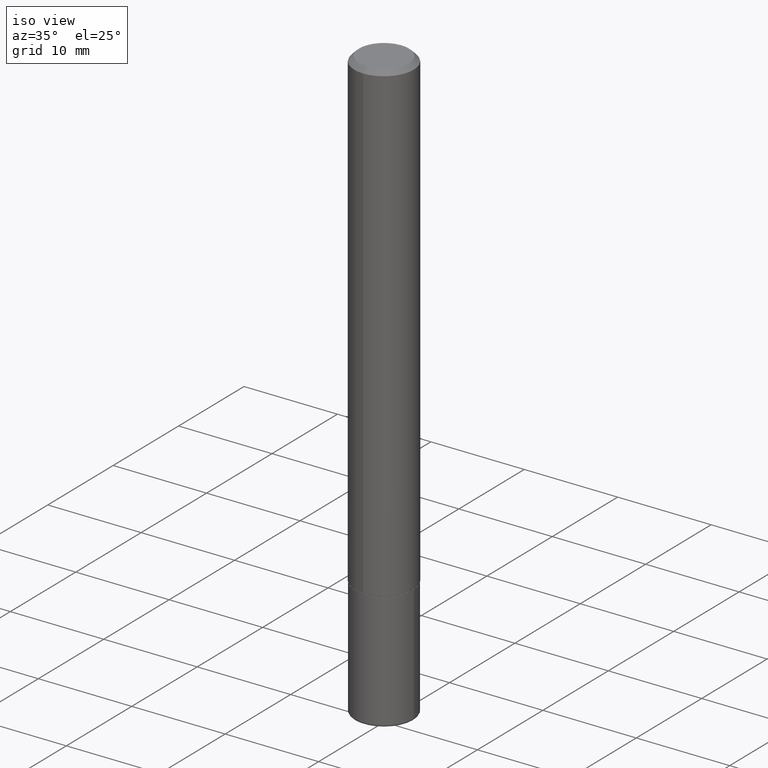
[diagram: clean part render]
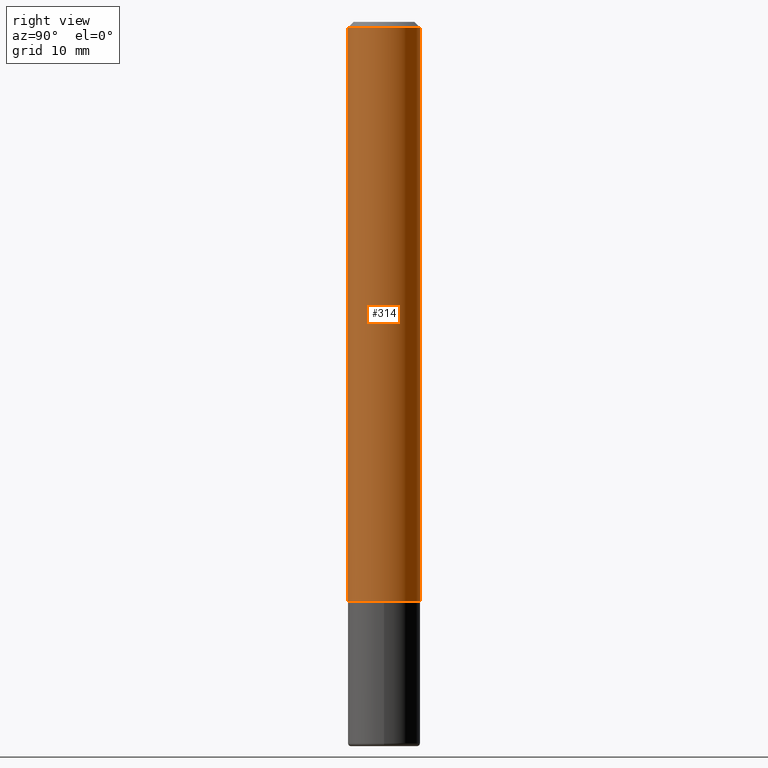
[diagram: tour spotlight — one face highlighted and labeled with its STEP entity id]
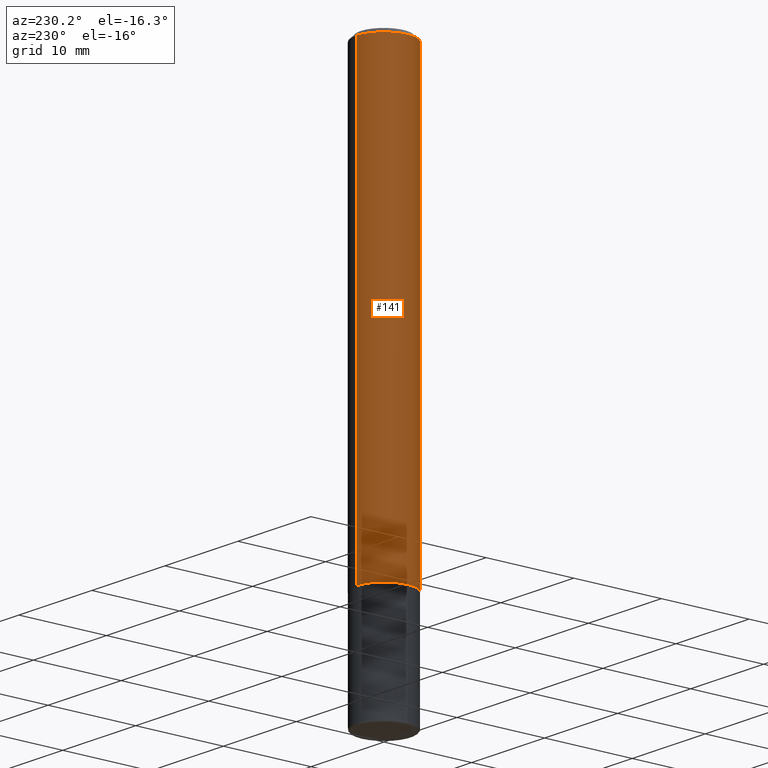
[diagram: tour spotlight — one face highlighted and labeled with its STEP entity id]
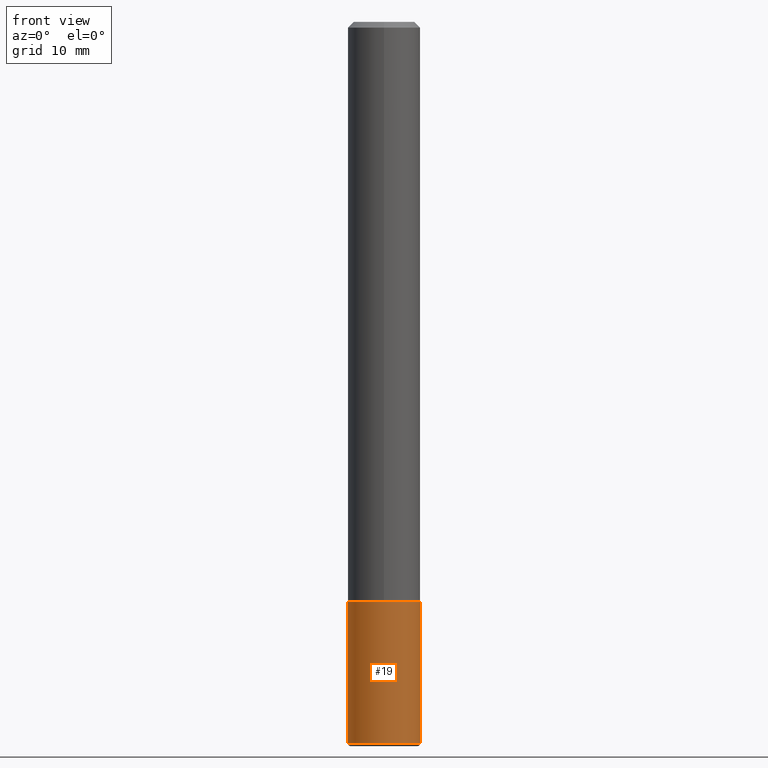
[diagram: tour spotlight — one face highlighted and labeled with its STEP entity id]
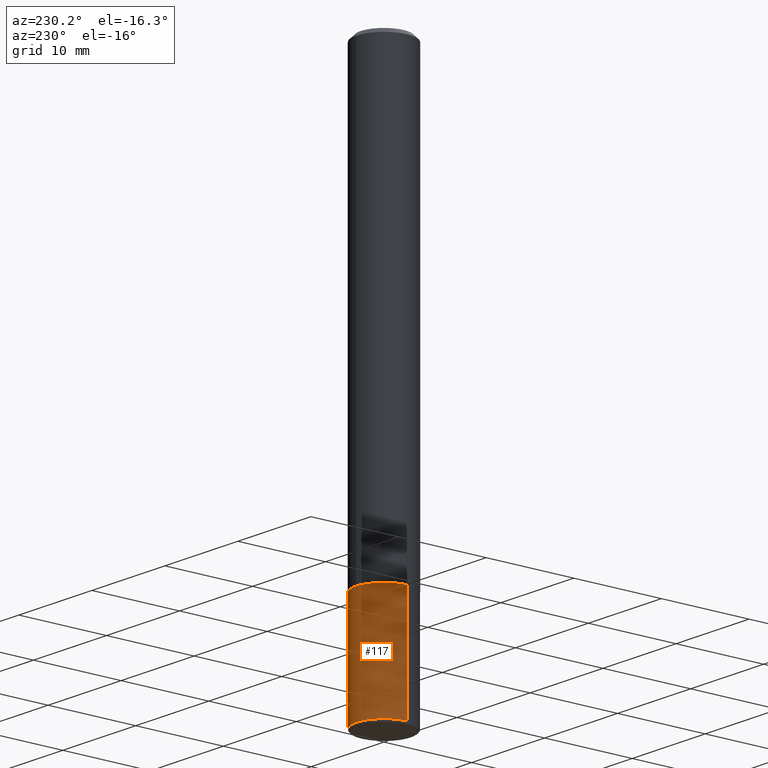
[diagram: tour spotlight — one face highlighted and labeled with its STEP entity id]
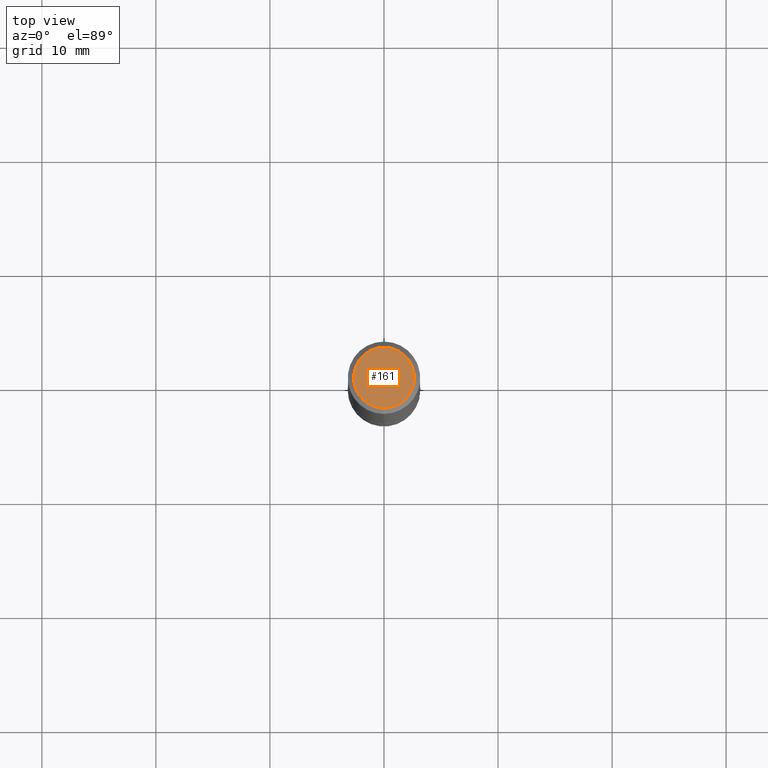
[diagram: tour spotlight — one face highlighted and labeled with its STEP entity id]
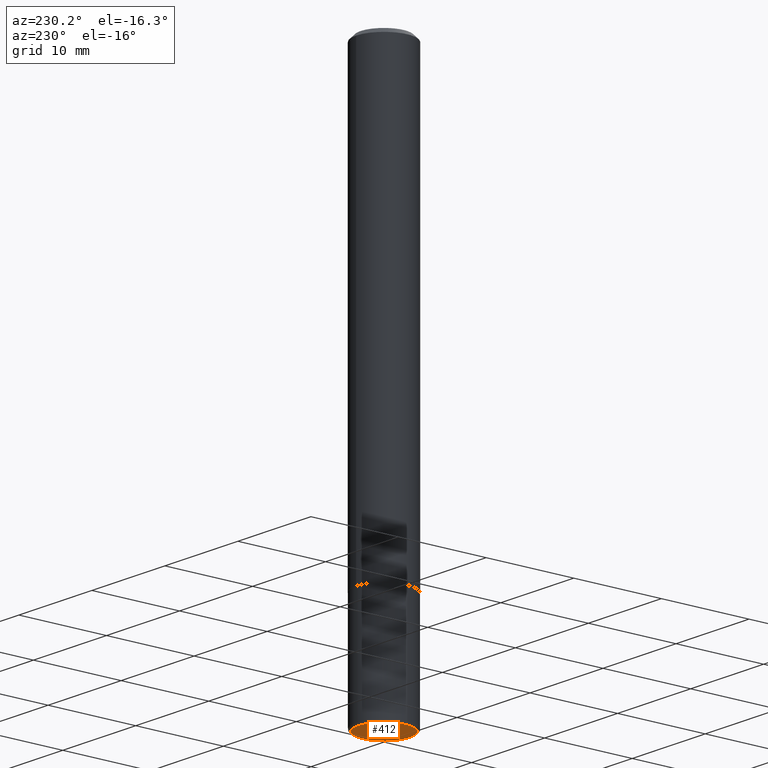
[diagram: tour spotlight — one face highlighted and labeled with its STEP entity id]
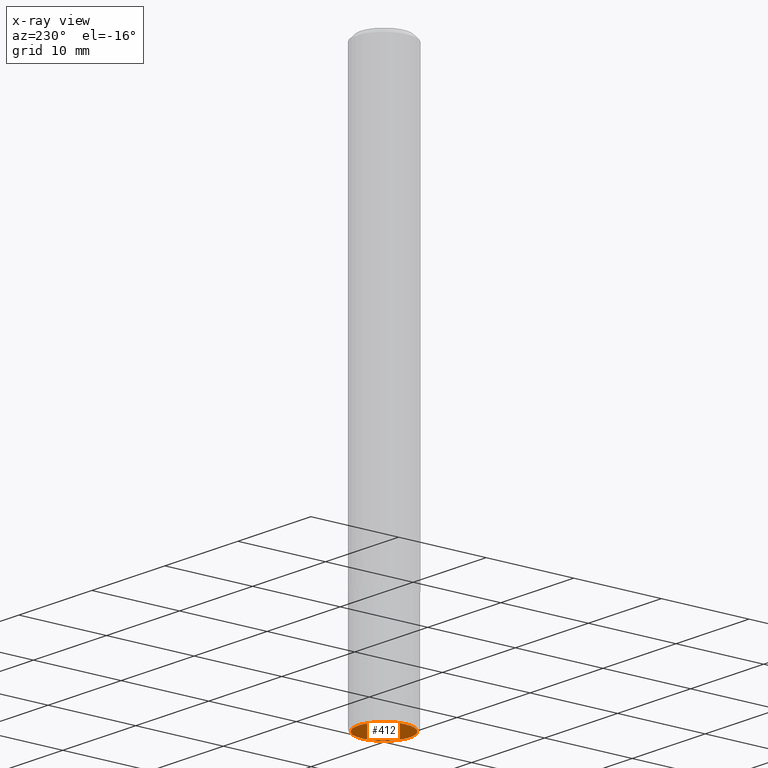
[diagram: x-ray of the same camera — body ghosted, this tour face saturated]
A machine part: a face-by-face anatomy tour. The part has 14 B-rep faces; the first image is the clean iso view, then the 6 largest visible faces are spotlighted one at a time (largest first), each with its STEP entity span.

Face 1 — right view, entity #314. In plain terms, the highlighted cylindrical surface (edge-blend (fillet) strip) has radius 3.175 mm, axis along (-0, 0, 1).
Definition (entity closure, byte-faithful):
#12 = DIRECTION ( 'NONE',  ( -2.445362441100968354E-29, 3.491633659697599275E-15, 1.000000000000000000 ) ) ;
#20 = CARTESIAN_POINT ( 'NONE',  ( -8.575622497214408537E-16, -0.1250000000000000555, -0.01999999999999959102 ) ) ;
#32 = EDGE_CURVE ( 'NONE', #33, #362, #373, .T. ) ;
#33 = VERTEX_POINT ( 'NONE', #407 ) ;
#39 = CARTESIAN_POINT ( 'NONE',  ( 0.000000000000000000, 0.000000000000000000, 0.000000000000000000 ) ) ;
#40 = ORIENTED_EDGE ( 'NONE', *, *, #268, .F. ) ;
#74 = ORIENTED_EDGE ( 'NONE', *, *, #240, .T. ) ;
#79 = EDGE_LOOP ( 'NONE', ( #74, #337, #169, #40 ) ) ;
#98 = DIRECTION ( 'NONE',  ( -2.445362441100968354E-29, 3.491633659697599275E-15, 1.000000000000000000 ) ) ;
#100 = FACE_OUTER_BOUND ( 'NONE', #79, .T. ) ;
#106 = VERTEX_POINT ( 'NONE', #20 ) ;
#129 = AXIS2_PLACEMENT_3D ( 'NONE', #381, #406, #206 ) ;
#132 = EDGE_CURVE ( 'NONE', #106, #362, #375, .T. ) ;
#169 = ORIENTED_EDGE ( 'NONE', *, *, #132, .F. ) ;
#195 = CARTESIAN_POINT ( 'NONE',  ( 8.728703347107837333E-16, 0.1249999999999999306, -0.02000000000000046185 ) ) ;
#206 = DIRECTION ( 'NONE',  ( -6.982962677686265922E-15, -1.000000000000000000, 3.483106191921935554E-15 ) ) ;
#219 = AXIS2_PLACEMENT_3D ( 'NONE', #294, #98, #358 ) ;
#240 = EDGE_CURVE ( 'NONE', #270, #33, #311, .T. ) ;
#248 = LINE ( 'NONE', #284, #318 ) ;
#252 = DIRECTION ( 'NONE',  ( -2.445362441100968354E-29, 3.491633659697598881E-15, 1.000000000000000000 ) ) ;
#268 = EDGE_CURVE ( 'NONE', #270, #106, #248, .T. ) ;
#270 = VERTEX_POINT ( 'NONE', #387 ) ;
#280 = CARTESIAN_POINT ( 'NONE',  ( 8.881784197001260212E-16, 0.1250000000000001110, -4.364542074622003531E-16 ) ) ;
#284 = CARTESIAN_POINT ( 'NONE',  ( -8.728703347107841277E-16, -0.1250000000000001110, 4.364542074622003531E-16 ) ) ;
#294 = CARTESIAN_POINT ( 'NONE',  ( 4.888279519760836279E-29, -6.979775685735500754E-15, -1.999000000000000110 ) ) ;
#302 = VECTOR ( 'NONE', #346, 39.37007874015748143 ) ;
#311 = CIRCLE ( 'NONE', #219, 0.1250000000000002498 ) ;
#314 = ADVANCED_FACE ( 'NONE', ( #100 ), #335, .T. ) ;
#318 = VECTOR ( 'NONE', #252, 39.37007874015748143 ) ;
#335 = CYLINDRICAL_SURFACE ( 'NONE', #356, 0.1250000000000001110 ) ;
#337 = ORIENTED_EDGE ( 'NONE', *, *, #32, .T. ) ;
#346 = DIRECTION ( 'NONE',  ( -2.445362441100968354E-29, 3.491633659697598881E-15, 1.000000000000000000 ) ) ;
#356 = AXIS2_PLACEMENT_3D ( 'NONE', #39, #12, #399 ) ;
#358 = DIRECTION ( 'NONE',  ( -6.982962677686265133E-15, -1.000000000000000000, 4.370956789862812472E-15 ) ) ;
#362 = VERTEX_POINT ( 'NONE', #195 ) ;
#373 = LINE ( 'NONE', #280, #302 ) ;
#375 = CIRCLE ( 'NONE', #129, 0.1250000000000000000 ) ;
#381 = CARTESIAN_POINT ( 'NONE',  ( 4.890724882201942593E-31, -6.983267319395208066E-17, -0.02000000000000002470 ) ) ;
#387 = CARTESIAN_POINT ( 'NONE',  ( -8.728703347107360072E-16, -0.1250000000000072164, -1.998999999999999666 ) ) ;
#399 = DIRECTION ( 'NONE',  ( -6.982962677686266711E-15, -1.000000000000000000, 3.491633659697599669E-15 ) ) ;
#406 = DIRECTION ( 'NONE',  ( -2.445362441100968354E-29, 3.491633659697599275E-15, 1.000000000000000000 ) ) ;
#407 = CARTESIAN_POINT ( 'NONE',  ( 8.881784197001510675E-16, 0.1249999999999932554, -1.999000000000000776 ) ) ;

Face 2 — auxiliary view, entity #141. In plain terms, the highlighted cylindrical surface (edge-blend (fillet) strip) has radius 3.175 mm, axis along (-0, 0, 1).
Definition (entity closure, byte-faithful):
#11 = EDGE_LOOP ( 'NONE', ( #198, #360, #228, #103 ) ) ;
#20 = CARTESIAN_POINT ( 'NONE',  ( -8.575622497214408537E-16, -0.1250000000000000555, -0.01999999999999959102 ) ) ;
#30 = CIRCLE ( 'NONE', #264, 0.1250000000000002498 ) ;
#32 = EDGE_CURVE ( 'NONE', #33, #362, #373, .T. ) ;
#33 = VERTEX_POINT ( 'NONE', #407 ) ;
#35 = EDGE_CURVE ( 'NONE', #33, #270, #30, .T. ) ;
#43 = DIRECTION ( 'NONE',  ( -2.445362441100968354E-29, 3.491633659697599275E-15, 1.000000000000000000 ) ) ;
#57 = DIRECTION ( 'NONE',  ( -6.982962677686266711E-15, -1.000000000000000000, 3.491633659697599669E-15 ) ) ;
#103 = ORIENTED_EDGE ( 'NONE', *, *, #366, .F. ) ;
#106 = VERTEX_POINT ( 'NONE', #20 ) ;
#115 = CARTESIAN_POINT ( 'NONE',  ( 4.888279519760836279E-29, -6.979775685735500754E-15, -1.999000000000000110 ) ) ;
#121 = DIRECTION ( 'NONE',  ( -6.982962677686265133E-15, -1.000000000000000000, 4.370956789862812472E-15 ) ) ;
#131 = DIRECTION ( 'NONE',  ( -6.982962677686265922E-15, -1.000000000000000000, 3.483106191921935554E-15 ) ) ;
#141 = ADVANCED_FACE ( 'NONE', ( #345 ), #153, .T. ) ;
#153 = CYLINDRICAL_SURFACE ( 'NONE', #199, 0.1250000000000001110 ) ;
#159 = CARTESIAN_POINT ( 'NONE',  ( 4.890724882201942593E-31, -6.983267319395208066E-17, -0.02000000000000002470 ) ) ;
#177 = DIRECTION ( 'NONE',  ( -2.445362441100968354E-29, 3.491633659697599275E-15, 1.000000000000000000 ) ) ;
#195 = CARTESIAN_POINT ( 'NONE',  ( 8.728703347107837333E-16, 0.1249999999999999306, -0.02000000000000046185 ) ) ;
#198 = ORIENTED_EDGE ( 'NONE', *, *, #32, .F. ) ;
#199 = AXIS2_PLACEMENT_3D ( 'NONE', #246, #177, #57 ) ;
#228 = ORIENTED_EDGE ( 'NONE', *, *, #268, .T. ) ;
#246 = CARTESIAN_POINT ( 'NONE',  ( 0.000000000000000000, 0.000000000000000000, 0.000000000000000000 ) ) ;
#248 = LINE ( 'NONE', #284, #318 ) ;
#252 = DIRECTION ( 'NONE',  ( -2.445362441100968354E-29, 3.491633659697598881E-15, 1.000000000000000000 ) ) ;
#264 = AXIS2_PLACEMENT_3D ( 'NONE', #115, #377, #121 ) ;
#268 = EDGE_CURVE ( 'NONE', #270, #106, #248, .T. ) ;
#270 = VERTEX_POINT ( 'NONE', #387 ) ;
#280 = CARTESIAN_POINT ( 'NONE',  ( 8.881784197001260212E-16, 0.1250000000000001110, -4.364542074622003531E-16 ) ) ;
#284 = CARTESIAN_POINT ( 'NONE',  ( -8.728703347107841277E-16, -0.1250000000000001110, 4.364542074622003531E-16 ) ) ;
#302 = VECTOR ( 'NONE', #346, 39.37007874015748143 ) ;
#318 = VECTOR ( 'NONE', #252, 39.37007874015748143 ) ;
#345 = FACE_OUTER_BOUND ( 'NONE', #11, .T. ) ;
#346 = DIRECTION ( 'NONE',  ( -2.445362441100968354E-29, 3.491633659697598881E-15, 1.000000000000000000 ) ) ;
#360 = ORIENTED_EDGE ( 'NONE', *, *, #35, .T. ) ;
#362 = VERTEX_POINT ( 'NONE', #195 ) ;
#366 = EDGE_CURVE ( 'NONE', #362, #106, #376, .T. ) ;
#373 = LINE ( 'NONE', #280, #302 ) ;
#376 = CIRCLE ( 'NONE', #409, 0.1250000000000000000 ) ;
#377 = DIRECTION ( 'NONE',  ( -2.445362441100968354E-29, 3.491633659697599275E-15, 1.000000000000000000 ) ) ;
#387 = CARTESIAN_POINT ( 'NONE',  ( -8.728703347107360072E-16, -0.1250000000000072164, -1.998999999999999666 ) ) ;
#407 = CARTESIAN_POINT ( 'NONE',  ( 8.881784197001510675E-16, 0.1249999999999932554, -1.999000000000000776 ) ) ;
#409 = AXIS2_PLACEMENT_3D ( 'NONE', #159, #43, #131 ) ;

Face 3 — front view, entity #19. In plain terms, the highlighted cylindrical surface (edge-blend (fillet) strip) has radius 3.175 mm, axis along (-0, 0, 1).
Definition (entity closure, byte-faithful):
#2 = CARTESIAN_POINT ( 'NONE',  ( -0.1250000000000000278, -7.805610114019306483E-15, -2.489999999999999769 ) ) ;
#3 = AXIS2_PLACEMENT_3D ( 'NONE', #227, #401, #109 ) ;
#19 = ADVANCED_FACE ( 'NONE', ( #185 ), #22, .T. ) ;
#22 = CYLINDRICAL_SURFACE ( 'NONE', #180, 0.1250000000000000000 ) ;
#34 = DIRECTION ( 'NONE',  ( 1.000000000000000000, -6.982962677686270655E-15, 0.000000000000000000 ) ) ;
#46 = ORIENTED_EDGE ( 'NONE', *, *, #168, .T. ) ;
#54 = EDGE_CURVE ( 'NONE', #201, #397, #145, .T. ) ;
#55 = CARTESIAN_POINT ( 'NONE',  ( -0.1250000000000000000, 8.881784197001252323E-16, -6.148668862818632227E-30 ) ) ;
#65 = VECTOR ( 'NONE', #124, 39.37007874015748143 ) ;
#71 = CIRCLE ( 'NONE', #3, 0.1249999999999999861 ) ;
#90 = DIRECTION ( 'NONE',  ( -2.445468806185136877E-29, 3.491481338843145188E-15, 1.000000000000000000 ) ) ;
#109 = DIRECTION ( 'NONE',  ( 1.000000000000000000, -6.982962677686271444E-15, 0.000000000000000000 ) ) ;
#124 = DIRECTION ( 'NONE',  ( -2.445468806185136877E-29, 3.491481338843145188E-15, 1.000000000000000000 ) ) ;
#140 = ORIENTED_EDGE ( 'NONE', *, *, #230, .F. ) ;
#142 = EDGE_LOOP ( 'NONE', ( #395, #216, #46, #140 ) ) ;
#145 = LINE ( 'NONE', #55, #65 ) ;
#147 = DIRECTION ( 'NONE',  ( 1.000000000000000000, -6.982962677686266711E-15, 4.876176775795935793E-29 ) ) ;
#149 = DIRECTION ( 'NONE',  ( -2.445468806185136597E-29, 3.491481338843145583E-15, 1.000000000000000000 ) ) ;
#163 = VERTEX_POINT ( 'NONE', #204 ) ;
#168 = EDGE_CURVE ( 'NONE', #400, #163, #343, .T. ) ;
#180 = AXIS2_PLACEMENT_3D ( 'NONE', #416, #149, #147 ) ;
#185 = FACE_OUTER_BOUND ( 'NONE', #142, .T. ) ;
#201 = VERTEX_POINT ( 'NONE', #2 ) ;
#204 = CARTESIAN_POINT ( 'NONE',  ( 0.1250000000000000000, -7.855833012397075293E-15, -2.000000000000000000 ) ) ;
#216 = ORIENTED_EDGE ( 'NONE', *, *, #332, .T. ) ;
#224 = VECTOR ( 'NONE', #90, 39.37007874015748143 ) ;
#227 = CARTESIAN_POINT ( 'NONE',  ( 6.089217327400989947E-29, -8.693788533719431716E-15, -2.489999999999999769 ) ) ;
#230 = EDGE_CURVE ( 'NONE', #397, #163, #325, .T. ) ;
#258 = DIRECTION ( 'NONE',  ( -2.445468806185136597E-29, 3.491481338843145583E-15, 1.000000000000000000 ) ) ;
#259 = CARTESIAN_POINT ( 'NONE',  ( -0.1250000000000000000, -6.950197186002735814E-15, -2.000000000000000000 ) ) ;
#266 = CARTESIAN_POINT ( 'NONE',  ( 0.1250000000000000278, -9.566658868430215055E-15, -2.489999999999999769 ) ) ;
#325 = CIRCLE ( 'NONE', #344, 0.1250000000000000000 ) ;
#326 = CARTESIAN_POINT ( 'NONE',  ( 4.890937612370273194E-29, -6.982962677686291165E-15, -2.000000000000000000 ) ) ;
#332 = EDGE_CURVE ( 'NONE', #201, #400, #71, .T. ) ;
#343 = LINE ( 'NONE', #413, #224 ) ;
#344 = AXIS2_PLACEMENT_3D ( 'NONE', #326, #258, #34 ) ;
#395 = ORIENTED_EDGE ( 'NONE', *, *, #54, .F. ) ;
#397 = VERTEX_POINT ( 'NONE', #259 ) ;
#400 = VERTEX_POINT ( 'NONE', #266 ) ;
#401 = DIRECTION ( 'NONE',  ( -2.445468806185136597E-29, 3.491481338843145583E-15, 1.000000000000000000 ) ) ;
#413 = CARTESIAN_POINT ( 'NONE',  ( 0.1250000000000000000, -8.728703347107833388E-16, 6.095220969744919741E-30 ) ) ;
#416 = CARTESIAN_POINT ( 'NONE',  ( 0.000000000000000000, 0.000000000000000000, 0.000000000000000000 ) ) ;

Face 4 — auxiliary view, entity #117. In plain terms, the highlighted cylindrical surface (edge-blend (fillet) strip) has radius 3.175 mm, axis along (-0, 0, 1).
Definition (entity closure, byte-faithful):
#2 = CARTESIAN_POINT ( 'NONE',  ( -0.1250000000000000278, -7.805610114019306483E-15, -2.489999999999999769 ) ) ;
#4 = EDGE_CURVE ( 'NONE', #163, #397, #50, .T. ) ;
#50 = CIRCLE ( 'NONE', #388, 0.1250000000000000000 ) ;
#54 = EDGE_CURVE ( 'NONE', #201, #397, #145, .T. ) ;
#55 = CARTESIAN_POINT ( 'NONE',  ( -0.1250000000000000000, 8.881784197001252323E-16, -6.148668862818632227E-30 ) ) ;
#64 = EDGE_LOOP ( 'NONE', ( #234, #190, #111, #370 ) ) ;
#65 = VECTOR ( 'NONE', #124, 39.37007874015748143 ) ;
#84 = FACE_OUTER_BOUND ( 'NONE', #64, .T. ) ;
#88 = DIRECTION ( 'NONE',  ( 1.000000000000000000, -6.982962677686271444E-15, 0.000000000000000000 ) ) ;
#90 = DIRECTION ( 'NONE',  ( -2.445468806185136877E-29, 3.491481338843145188E-15, 1.000000000000000000 ) ) ;
#111 = ORIENTED_EDGE ( 'NONE', *, *, #4, .F. ) ;
#112 = DIRECTION ( 'NONE',  ( -2.445468806185136597E-29, 3.491481338843145583E-15, 1.000000000000000000 ) ) ;
#113 = CARTESIAN_POINT ( 'NONE',  ( 0.000000000000000000, 0.000000000000000000, 0.000000000000000000 ) ) ;
#117 = ADVANCED_FACE ( 'NONE', ( #84 ), #276, .T. ) ;
#119 = DIRECTION ( 'NONE',  ( -2.445468806185136597E-29, 3.491481338843145583E-15, 1.000000000000000000 ) ) ;
#124 = DIRECTION ( 'NONE',  ( -2.445468806185136877E-29, 3.491481338843145188E-15, 1.000000000000000000 ) ) ;
#145 = LINE ( 'NONE', #55, #65 ) ;
#146 = EDGE_CURVE ( 'NONE', #400, #201, #336, .T. ) ;
#150 = DIRECTION ( 'NONE',  ( -2.445468806185136597E-29, 3.491481338843145583E-15, 1.000000000000000000 ) ) ;
#163 = VERTEX_POINT ( 'NONE', #204 ) ;
#168 = EDGE_CURVE ( 'NONE', #400, #163, #343, .T. ) ;
#189 = AXIS2_PLACEMENT_3D ( 'NONE', #113, #119, #384 ) ;
#190 = ORIENTED_EDGE ( 'NONE', *, *, #54, .T. ) ;
#201 = VERTEX_POINT ( 'NONE', #2 ) ;
#204 = CARTESIAN_POINT ( 'NONE',  ( 0.1250000000000000000, -7.855833012397075293E-15, -2.000000000000000000 ) ) ;
#224 = VECTOR ( 'NONE', #90, 39.37007874015748143 ) ;
#234 = ORIENTED_EDGE ( 'NONE', *, *, #146, .T. ) ;
#236 = DIRECTION ( 'NONE',  ( 1.000000000000000000, -6.982962677686270655E-15, 0.000000000000000000 ) ) ;
#255 = AXIS2_PLACEMENT_3D ( 'NONE', #378, #150, #88 ) ;
#259 = CARTESIAN_POINT ( 'NONE',  ( -0.1250000000000000000, -6.950197186002735814E-15, -2.000000000000000000 ) ) ;
#266 = CARTESIAN_POINT ( 'NONE',  ( 0.1250000000000000278, -9.566658868430215055E-15, -2.489999999999999769 ) ) ;
#275 = CARTESIAN_POINT ( 'NONE',  ( 4.890937612370273194E-29, -6.982962677686291165E-15, -2.000000000000000000 ) ) ;
#276 = CYLINDRICAL_SURFACE ( 'NONE', #189, 0.1250000000000000000 ) ;
#336 = CIRCLE ( 'NONE', #255, 0.1249999999999999861 ) ;
#343 = LINE ( 'NONE', #413, #224 ) ;
#370 = ORIENTED_EDGE ( 'NONE', *, *, #168, .F. ) ;
#378 = CARTESIAN_POINT ( 'NONE',  ( 6.089217327400989947E-29, -8.693788533719431716E-15, -2.489999999999999769 ) ) ;
#384 = DIRECTION ( 'NONE',  ( 1.000000000000000000, -6.982962677686266711E-15, 4.876176775795935793E-29 ) ) ;
#388 = AXIS2_PLACEMENT_3D ( 'NONE', #275, #112, #236 ) ;
#397 = VERTEX_POINT ( 'NONE', #259 ) ;
#400 = VERTEX_POINT ( 'NONE', #266 ) ;
#413 = CARTESIAN_POINT ( 'NONE',  ( 0.1250000000000000000, -8.728703347107833388E-16, 6.095220969744919741E-30 ) ) ;

Face 5 — top view, entity #161. In plain terms, the highlighted planar face has unit normal (0, -0, -1).
Definition (entity closure, byte-faithful):
#25 = CIRCLE ( 'NONE', #233, 0.1050000000000000377 ) ;
#27 = CARTESIAN_POINT ( 'NONE',  ( 7.332110811570581229E-16, 0.1050000000000000377, -3.879560998738913242E-16 ) ) ;
#48 = ORIENTED_EDGE ( 'NONE', *, *, #398, .T. ) ;
#59 = AXIS2_PLACEMENT_3D ( 'NONE', #361, #304, #72 ) ;
#67 = DIRECTION ( 'NONE',  ( -2.445362441100968354E-29, 3.491633659697599275E-15, 1.000000000000000000 ) ) ;
#72 = DIRECTION ( 'NONE',  ( -6.982962677686265133E-15, -1.000000000000000000, 3.491633659697599669E-15 ) ) ;
#96 = CARTESIAN_POINT ( 'NONE',  ( 1.043414908584889994E-45, -1.489849747673812213E-31, -4.266913121128647336E-17 ) ) ;
#99 = VERTEX_POINT ( 'NONE', #410 ) ;
#116 = CIRCLE ( 'NONE', #59, 0.1050000000000000377 ) ;
#161 = ADVANCED_FACE ( 'NONE', ( #321 ), #319, .F. ) ;
#171 = VERTEX_POINT ( 'NONE', #213 ) ;
#173 = EDGE_LOOP ( 'NONE', ( #367, #48 ) ) ;
#213 = CARTESIAN_POINT ( 'NONE',  ( 8.030407079339210267E-16, 0.1050000000000000377, -4.092906654795345116E-16 ) ) ;
#233 = AXIS2_PLACEMENT_3D ( 'NONE', #96, #67, #262 ) ;
#262 = DIRECTION ( 'NONE',  ( -6.982962677686265133E-15, -1.000000000000000000, 3.491633659697599669E-15 ) ) ;
#274 = EDGE_CURVE ( 'NONE', #171, #99, #25, .T. ) ;
#282 = DIRECTION ( 'NONE',  ( 2.445362441100968074E-29, -3.491633659697598881E-15, -1.000000000000000000 ) ) ;
#295 = AXIS2_PLACEMENT_3D ( 'NONE', #27, #282, #313 ) ;
#304 = DIRECTION ( 'NONE',  ( -2.445362441100968354E-29, 3.491633659697599275E-15, 1.000000000000000000 ) ) ;
#313 = DIRECTION ( 'NONE',  ( 6.982962677686265922E-15, 1.000000000000000000, -3.491633659697598881E-15 ) ) ;
#319 = PLANE ( 'NONE',  #295 ) ;
#321 = FACE_OUTER_BOUND ( 'NONE', #173, .T. ) ;
#361 = CARTESIAN_POINT ( 'NONE',  ( 1.043414908584889994E-45, -1.489849747673812213E-31, -4.266913121128647336E-17 ) ) ;
#367 = ORIENTED_EDGE ( 'NONE', *, *, #274, .T. ) ;
#398 = EDGE_CURVE ( 'NONE', #99, #171, #116, .T. ) ;
#410 = CARTESIAN_POINT ( 'NONE',  ( -7.889572697437260153E-16, -0.1050000000000000377, 3.239524030569616142E-16 ) ) ;

Face 6 — auxiliary view, entity #412. An x-ray twin of the same camera follows (body ghosted, this face saturated) — the face is partly hidden behind the body. In plain terms, the highlighted planar face has unit normal (0, -0, -1).
Definition (entity closure, byte-faithful):
#6 = DIRECTION ( 'NONE',  ( -2.445468806185136597E-29, 3.491481338843145583E-15, 1.000000000000000000 ) ) ;
#21 = CARTESIAN_POINT ( 'NONE',  ( 6.113672015462842613E-29, -8.728703347107864943E-15, -2.500000000000000000 ) ) ;
#23 = EDGE_CURVE ( 'NONE', #42, #232, #393, .T. ) ;
#42 = VERTEX_POINT ( 'NONE', #207 ) ;
#75 = CARTESIAN_POINT ( 'NONE',  ( 6.113672015462842613E-29, -8.728703347107864943E-15, -2.500000000000000000 ) ) ;
#76 = ORIENTED_EDGE ( 'NONE', *, *, #351, .F. ) ;
#86 = DIRECTION ( 'NONE',  ( -2.445468806185136597E-29, 3.491481338843145583E-15, 1.000000000000000000 ) ) ;
#107 = CARTESIAN_POINT ( 'NONE',  ( 6.113672015462842613E-29, -8.728703347107864943E-15, -2.500000000000000000 ) ) ;
#136 = AXIS2_PLACEMENT_3D ( 'NONE', #75, #6, #330 ) ;
#139 = PLANE ( 'NONE',  #389 ) ;
#202 = DIRECTION ( 'NONE',  ( 2.438088387897960049E-29, -3.491481338843145188E-15, -1.000000000000000000 ) ) ;
#207 = CARTESIAN_POINT ( 'NONE',  ( -0.1150000000000000050, -7.858594657501527349E-15, -2.500000000000000000 ) ) ;
#231 = DIRECTION ( 'NONE',  ( -1.000000000000000000, 6.982962677686265922E-15, -4.876176775795935793E-29 ) ) ;
#232 = VERTEX_POINT ( 'NONE', #357 ) ;
#267 = ORIENTED_EDGE ( 'NONE', *, *, #23, .F. ) ;
#269 = FACE_OUTER_BOUND ( 'NONE', #341, .T. ) ;
#277 = DIRECTION ( 'NONE',  ( 1.000000000000000000, -6.982962677686265133E-15, 0.000000000000000000 ) ) ;
#296 = CIRCLE ( 'NONE', #136, 0.1150000000000000050 ) ;
#330 = DIRECTION ( 'NONE',  ( 1.000000000000000000, -6.982962677686265133E-15, 0.000000000000000000 ) ) ;
#341 = EDGE_LOOP ( 'NONE', ( #76, #267 ) ) ;
#351 = EDGE_CURVE ( 'NONE', #232, #42, #296, .T. ) ;
#357 = CARTESIAN_POINT ( 'NONE',  ( 0.1150000000000000050, -9.531744055041784983E-15, -2.500000000000000000 ) ) ;
#389 = AXIS2_PLACEMENT_3D ( 'NONE', #107, #202, #231 ) ;
#393 = CIRCLE ( 'NONE', #408, 0.1150000000000000050 ) ;
#408 = AXIS2_PLACEMENT_3D ( 'NONE', #21, #86, #277 ) ;
#412 = ADVANCED_FACE ( 'NONE', ( #269 ), #139, .T. ) ;